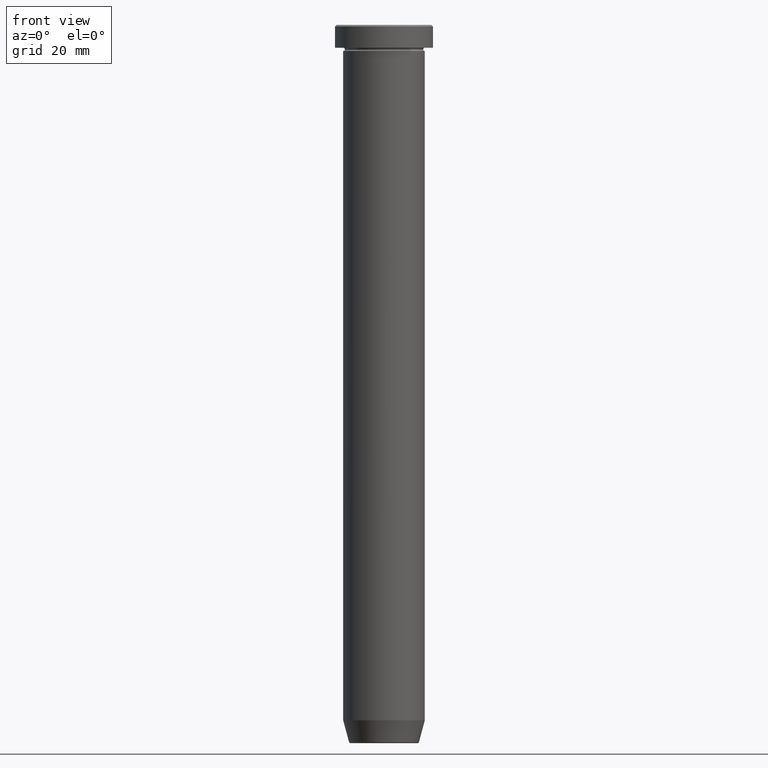
[diagram: clean part render]
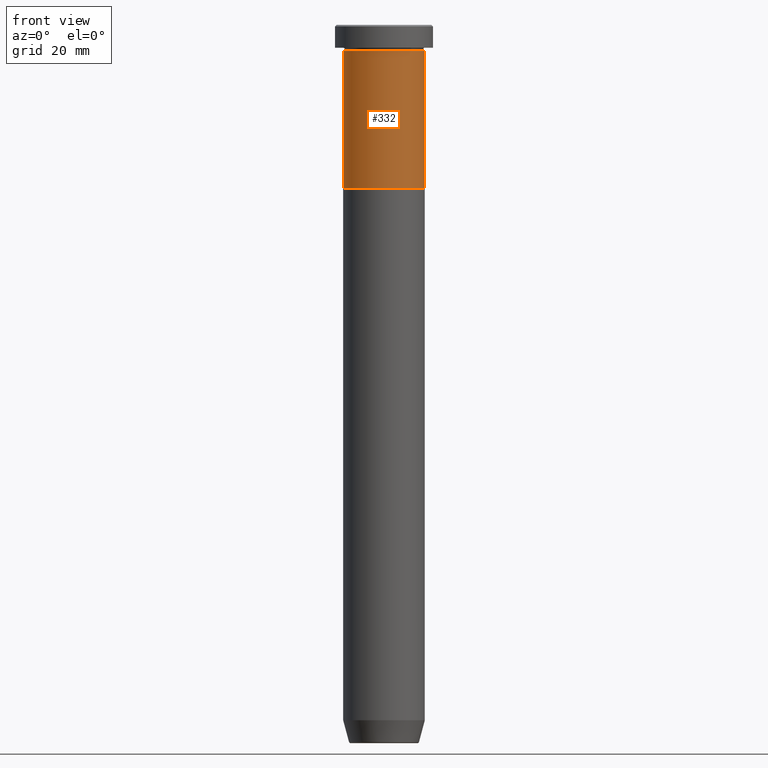
[diagram: same view with one face highlighted and labeled with its STEP entity id]
A machine part, front view. The second image highlights one B-rep face of the part: STEP entity #332.
In plain terms, the highlighted cylindrical surface (partial cylindrical patch) has radius 12.5 mm, axis along (-0, -0, 1).
Its self-contained STEP definition (entity closure, byte-faithful):
#3 = CIRCLE ( 'NONE', #422, 12.50000000000000000 ) ;
#23 = CYLINDRICAL_SURFACE ( 'NONE', #285, 12.50000000000000000 ) ;
#55 = EDGE_CURVE ( 'NONE', #264, #439, #360, .T. ) ;
#88 = VECTOR ( 'NONE', #230, 1000.000000000000000 ) ;
#117 = ORIENTED_EDGE ( 'NONE', *, *, #335, .T. ) ;
#118 = CARTESIAN_POINT ( 'NONE',  ( 12.50000000000000000, 0.000000000000000000, 0.000000000000000000 ) ) ;
#170 = CARTESIAN_POINT ( 'NONE',  ( 0.000000000000000000, 0.000000000000000000, 0.000000000000000000 ) ) ;
#173 = EDGE_LOOP ( 'NONE', ( #395, #215, #117, #490 ) ) ;
#210 = DIRECTION ( 'NONE',  ( -0.000000000000000000, -0.000000000000000000, 1.000000000000000000 ) ) ;
#215 = ORIENTED_EDGE ( 'NONE', *, *, #414, .T. ) ;
#230 = DIRECTION ( 'NONE',  ( -0.000000000000000000, -0.000000000000000000, 1.000000000000000000 ) ) ;
#264 = VERTEX_POINT ( 'NONE', #268 ) ;
#268 = CARTESIAN_POINT ( 'NONE',  ( -12.50000000000000000, 1.530808498934191521E-15, -50.00000000000000000 ) ) ;
#285 = AXIS2_PLACEMENT_3D ( 'NONE', #170, #539, #389 ) ;
#299 = CARTESIAN_POINT ( 'NONE',  ( 0.000000000000000000, 0.000000000000000000, -8.000000000000000000 ) ) ;
#303 = DIRECTION ( 'NONE',  ( -0.000000000000000000, -0.000000000000000000, 1.000000000000000000 ) ) ;
#332 = ADVANCED_FACE ( 'NONE', ( #434 ), #23, .T. ) ;
#335 = EDGE_CURVE ( 'NONE', #553, #527, #346, .T. ) ;
#346 = LINE ( 'NONE', #118, #549 ) ;
#351 = DIRECTION ( 'NONE',  ( 1.000000000000000000, 0.000000000000000000, 0.000000000000000000 ) ) ;
#360 = LINE ( 'NONE', #367, #88 ) ;
#367 = CARTESIAN_POINT ( 'NONE',  ( -12.50000000000000000, 1.530808498934191521E-15, 0.000000000000000000 ) ) ;
#389 = DIRECTION ( 'NONE',  ( 1.000000000000000000, 0.000000000000000000, 0.000000000000000000 ) ) ;
#395 = ORIENTED_EDGE ( 'NONE', *, *, #55, .F. ) ;
#414 = EDGE_CURVE ( 'NONE', #264, #553, #519, .T. ) ;
#415 = AXIS2_PLACEMENT_3D ( 'NONE', #514, #303, #440 ) ;
#422 = AXIS2_PLACEMENT_3D ( 'NONE', #299, #594, #351 ) ;
#434 = FACE_OUTER_BOUND ( 'NONE', #173, .T. ) ;
#439 = VERTEX_POINT ( 'NONE', #548 ) ;
#440 = DIRECTION ( 'NONE',  ( 1.000000000000000000, 0.000000000000000000, 0.000000000000000000 ) ) ;
#490 = ORIENTED_EDGE ( 'NONE', *, *, #554, .F. ) ;
#496 = CARTESIAN_POINT ( 'NONE',  ( 12.50000000000000000, 0.000000000000000000, -8.000000000000000000 ) ) ;
#514 = CARTESIAN_POINT ( 'NONE',  ( 0.000000000000000000, 0.000000000000000000, -50.00000000000000000 ) ) ;
#519 = CIRCLE ( 'NONE', #415, 12.50000000000000000 ) ;
#527 = VERTEX_POINT ( 'NONE', #496 ) ;
#531 = CARTESIAN_POINT ( 'NONE',  ( 12.50000000000000000, 0.000000000000000000, -50.00000000000000000 ) ) ;
#539 = DIRECTION ( 'NONE',  ( -0.000000000000000000, -0.000000000000000000, 1.000000000000000000 ) ) ;
#548 = CARTESIAN_POINT ( 'NONE',  ( -12.50000000000000000, 1.530808498934191521E-15, -8.000000000000000000 ) ) ;
#549 = VECTOR ( 'NONE', #210, 1000.000000000000000 ) ;
#553 = VERTEX_POINT ( 'NONE', #531 ) ;
#554 = EDGE_CURVE ( 'NONE', #439, #527, #3, .T. ) ;
#594 = DIRECTION ( 'NONE',  ( -0.000000000000000000, -0.000000000000000000, 1.000000000000000000 ) ) ;